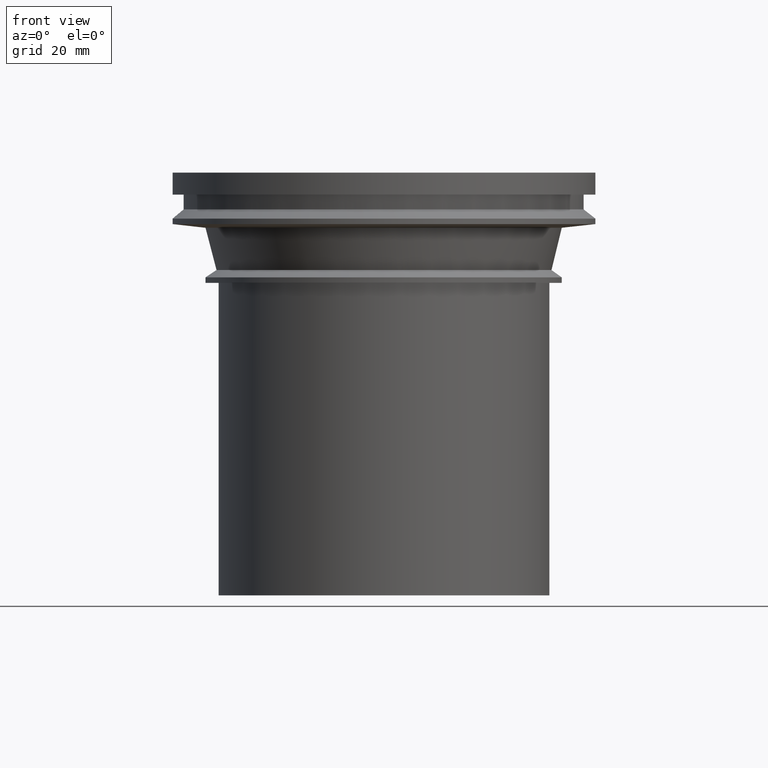
[diagram: clean part render]
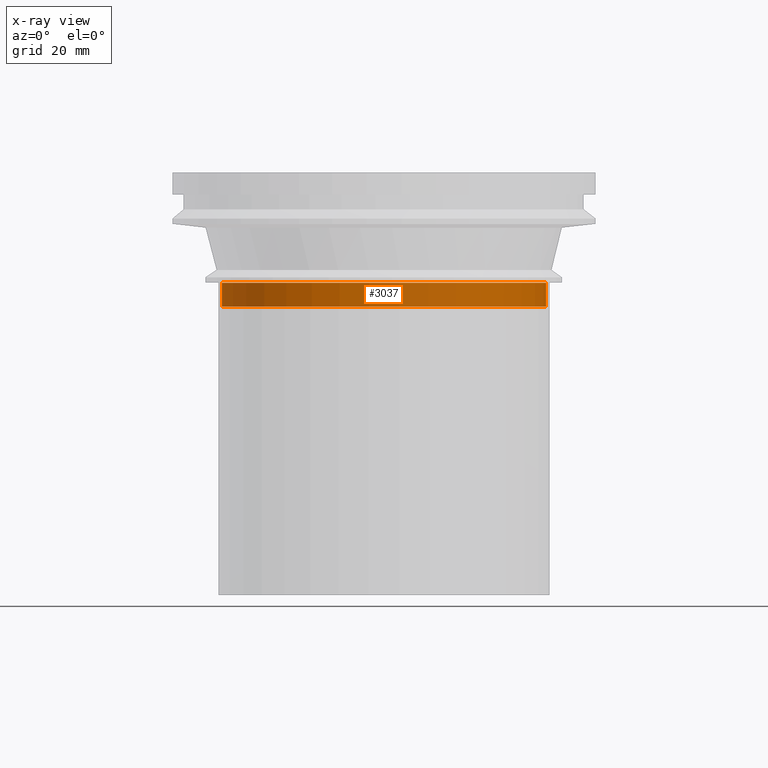
[diagram: x-ray — body ghosted, one internal face saturated and labeled with its STEP entity id]
A machine part, front view, then the same camera in x-ray: the body is ghosted and one INTERNAL B-rep face — a face not visible from any outside direction — is saturated and labeled: STEP entity #3037.
In plain terms, the highlighted cylindrical surface (bore or boss wall) has radius 44.056 mm, axis along (0, 0, -1).
Its self-contained STEP definition (entity closure, byte-faithful):
#597=CYLINDRICAL_SURFACE('',#3381,44.056);
#1463=ORIENTED_EDGE('',*,*,#1913,.T.);
#1464=ORIENTED_EDGE('',*,*,#1912,.F.);
#1912=EDGE_CURVE('',#2214,#2214,#2384,.T.);
#1913=EDGE_CURVE('',#2215,#2215,#2385,.T.);
#2214=VERTEX_POINT('',#5473);
#2215=VERTEX_POINT('',#5476);
#2384=CIRCLE('',#3380,44.056);
#2385=CIRCLE('',#3382,44.056);
#2605=EDGE_LOOP('',(#1463));
#2606=EDGE_LOOP('',(#1464));
#2835=FACE_BOUND('',#2605,.T.);
#2836=FACE_BOUND('',#2606,.T.);
#3037=ADVANCED_FACE('',(#2835,#2836),#597,.T.);
#3380=AXIS2_PLACEMENT_3D('',#5472,#4197,#4198);
#3381=AXIS2_PLACEMENT_3D('',#5474,#4199,#4200);
#3382=AXIS2_PLACEMENT_3D('',#5475,#4201,#4202);
#4197=DIRECTION('',(0.,0.,-1.));
#4198=DIRECTION('',(-1.,0.,0.));
#4199=DIRECTION('',(0.,0.,-1.));
#4200=DIRECTION('',(-1.,0.,0.));
#4201=DIRECTION('',(0.,0.,-1.));
#4202=DIRECTION('',(-1.,0.,0.));
#5472=CARTESIAN_POINT('',(0.,0.,-36.5));
#5473=CARTESIAN_POINT('',(-44.056,0.,-36.5));
#5474=CARTESIAN_POINT('',(0.,0.,-50.));
#5475=CARTESIAN_POINT('',(0.,0.,-30.));
#5476=CARTESIAN_POINT('',(-44.056,0.,-30.));